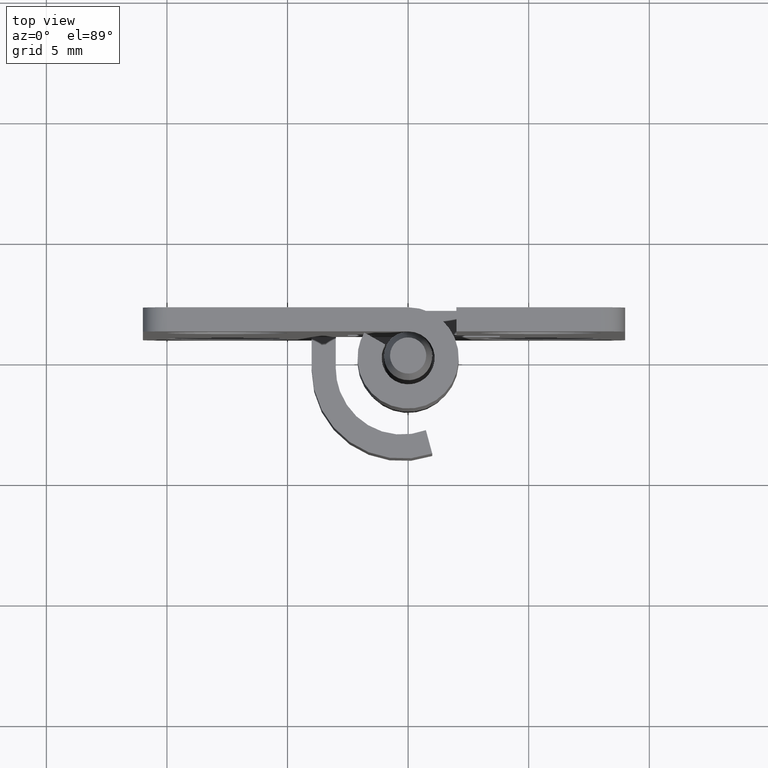
[diagram: clean part render]
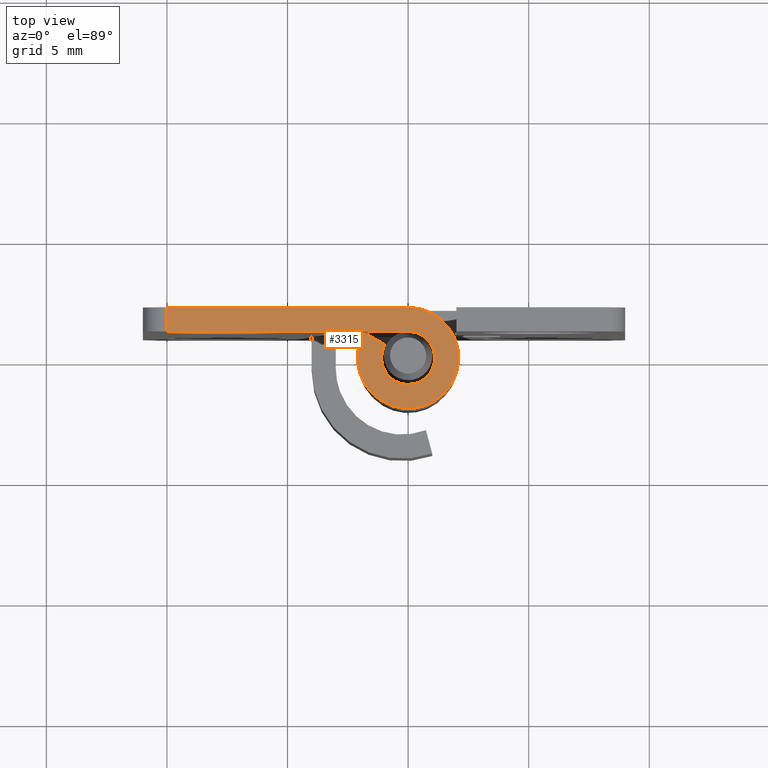
[diagram: same view with one face highlighted and labeled with its STEP entity id]
A machine part, top view. The second image highlights one B-rep face of the part: STEP entity #3315.
In plain terms, the highlighted face is a freeform B-spline surface patch.
Its self-contained STEP definition (entity closure, byte-faithful):
#2373=CARTESIAN_POINT('',(-1.818660313040655,0.950008000000038,22.0));
#2374=VERTEX_POINT('',#2373);
#2421=CARTESIAN_POINT('',(-0.000006965093348,2.000008000000035,22.0));
#2422=VERTEX_POINT('',#2421);
#2428=CARTESIAN_POINT('',(-0.000006965093348,2.000008000000035,22.0));
#2429=CARTESIAN_POINT('',(0.171803505224364,2.000056506684977,22.000000000000082));
#2430=CARTESIAN_POINT('',(0.443803904288967,1.966427482992136,21.999999999999851));
#2431=CARTESIAN_POINT('',(0.777945248739456,1.856787059198147,22.000000000000139));
#2432=CARTESIAN_POINT('',(1.056250049016021,1.724121769088248,21.999999999999979));
#2433=CARTESIAN_POINT('',(1.360279219486728,1.519200306895643,22.000000000000089));
#2434=CARTESIAN_POINT('',(1.657116468770604,1.214989718175777,21.999999999999972));
#2435=CARTESIAN_POINT('',(1.876080847443115,0.868386688320490,22.000000000000039));
#2436=CARTESIAN_POINT('',(2.008089232676498,0.542136965499962,22.0));
#2437=CARTESIAN_POINT('',(2.075484400646828,0.255709827461828,22.0));
#2438=CARTESIAN_POINT('',(2.108769775225869,-0.065212474532560,22.000000000000021));
#2439=CARTESIAN_POINT('',(2.091688006117292,-0.374166164875588,22.0));
#2440=CARTESIAN_POINT('',(2.009161211916098,-0.745231365386407,21.999999999999989));
#2441=CARTESIAN_POINT('',(1.892157207409869,-1.031862683933976,22.000000000000060));
#2442=CARTESIAN_POINT('',(1.720888507747875,-1.313624580355603,21.999999999999869));
#2443=CARTESIAN_POINT('',(1.514800377240157,-1.571705583249755,22.000000000000341));
#2444=CARTESIAN_POINT('',(1.231560831674659,-1.816536298127245,21.999999999999570));
#2445=CARTESIAN_POINT('',(0.914315332627469,-1.999671457372887,21.999999999999591));
#2446=CARTESIAN_POINT('',(0.626620624372855,-2.111322240939172,22.000000000000028));
#2447=CARTESIAN_POINT('',(0.291483390300439,-2.190574436525137,22.000000000000011));
#2448=CARTESIAN_POINT('',(-0.039148691548723,-2.209868743365001,21.999999999999989));
#2449=CARTESIAN_POINT('',(-0.381313392208804,-2.171898434970793,22.000000000000060));
#2450=CARTESIAN_POINT('',(-0.729287654714941,-2.083644553395758,22.000000000000028));
#2451=CARTESIAN_POINT('',(-1.094012583526060,-1.910679757107140,21.999999999999961));
#2452=CARTESIAN_POINT('',(-1.413884877477803,-1.666231803039715,22.000000000000870));
#2453=CARTESIAN_POINT('',(-1.673157379521329,-1.387713606169517,21.999999999999140));
#2454=CARTESIAN_POINT('',(-1.855849292510685,-1.103096969650911,22.000000000000341));
#2455=CARTESIAN_POINT('',(-1.994961052806549,-0.780365450521696,21.999999999999989));
#2456=CARTESIAN_POINT('',(-2.086910615922137,-0.433041165002135,21.999999999999719));
#2457=CARTESIAN_POINT('',(-2.111008683292910,-0.059421629612828,22.000000000001101));
#2458=CARTESIAN_POINT('',(-2.067525976318497,0.318468848048376,21.999999999996820));
#2459=CARTESIAN_POINT('',(-1.974747989416232,0.643358325815232,22.000000000008630));
#2460=CARTESIAN_POINT('',(-1.872352159829929,0.857017962635177,21.999999999996760));
#2461=CARTESIAN_POINT('',(-1.818660313040655,0.950008000000038,22.0));
#2462=B_SPLINE_CURVE_WITH_KNOTS('',3,(#2428,#2429,#2430,#2431,#2432,#2433,#2434,#2435,#2436,#2437,#2438,#2439,#2440,#2441,#2442,#2443,#2444,#2445,#2446,#2447,#2448,#2449,#2450,#2451,#2452,#2453,#2454,#2455,#2456,#2457,#2458,#2459,#2460,#2461),.UNSPECIFIED.,.F.,.U.,(4,1,1,1,1,1,1,1,1,1,1,1,1,1,1,1,1,1,1,1,1,1,1,1,1,1,1,1,1,1,1,4),(0.000000074224342,0.515418598163373,0.816075002584137,1.052312182821520,1.438880832708291,1.911355094797486,2.319391387292535,2.663013344663320,2.963663255162823,3.199887765877637,3.629408981586954,3.887121815356156,4.338118142607809,4.552880215748390,4.875013997589112,5.326017233904954,5.669605218322189,5.970269177950158,6.249457828371789,6.700456718414553,6.958167561492515,7.280306153372877,7.774258930355885,8.160823926279617,8.482946048863086,8.912459206243241,9.170171752553641,9.535265977289472,9.986262868978550,10.286922431243029,10.673487494879691,10.995622199914740),.UNSPECIFIED.);
#2463=EDGE_CURVE('',#2422,#2374,#2462,.T.);
#2481=CARTESIAN_POINT('',(-0.952634909256224,0.450008000000027,22.0));
#2482=VERTEX_POINT('',#2481);
#2483=CARTESIAN_POINT('',(-1.818660313040655,0.950008000000038,22.0));
#2484=CARTESIAN_POINT('',(-0.952634909256224,0.450008000000027,22.0));
#2485=QUASI_UNIFORM_CURVE('',1,(#2483,#2484),.UNSPECIFIED.,.F.,.U.);
#2486=EDGE_CURVE('',#2374,#2482,#2485,.T.);
#2532=CARTESIAN_POINT('',(-9.999999999999890,2.000008000000035,22.0));
#2533=VERTEX_POINT('',#2532);
#2547=CARTESIAN_POINT('',(-9.999999999999890,2.000008000000035,22.0));
#2548=CARTESIAN_POINT('',(-0.000006965093348,2.000008000000035,22.0));
#2549=QUASI_UNIFORM_CURVE('',1,(#2547,#2548),.UNSPECIFIED.,.F.,.U.);
#2550=EDGE_CURVE('',#2533,#2422,#2549,.T.);
#2659=CARTESIAN_POINT('',(-9.999999999999890,1.000008000000036,22.0));
#2660=VERTEX_POINT('',#2659);
#2676=CARTESIAN_POINT('',(-9.999999999999890,2.000008000000035,22.0));
#2677=CARTESIAN_POINT('',(-9.999999999999890,1.000008000000036,22.0));
#2678=QUASI_UNIFORM_CURVE('',1,(#2676,#2677),.UNSPECIFIED.,.F.,.U.);
#2679=EDGE_CURVE('',#2533,#2660,#2678,.T.);
#3265=CARTESIAN_POINT('',(-10.604394628640170,-2.409781991857306,22.0));
#3266=CARTESIAN_POINT('',(2.704387988070699,-2.409781991857306,22.0));
#3267=CARTESIAN_POINT('',(-10.604394628640170,2.209798104512293,22.0));
#3268=CARTESIAN_POINT('',(2.704387988070699,2.209798104512293,22.0));
#3269=B_SPLINE_SURFACE_WITH_KNOTS('',1,1,((#3265,#3267),(#3266,#3268)),.UNSPECIFIED.,.F.,.F.,.U.,(2,2),(2,2),(0.0,13.308782616710870),(0.0,4.619580096369599),.UNSPECIFIED.);
#3270=ORIENTED_EDGE('',*,*,#2550,.F.);
#3271=ORIENTED_EDGE('',*,*,#2679,.T.);
#3272=CARTESIAN_POINT('',(-0.000006965093348,1.000008000000014,22.0));
#3273=VERTEX_POINT('',#3272);
#3274=CARTESIAN_POINT('',(-0.000006965093348,1.000008000000014,22.0));
#3275=CARTESIAN_POINT('',(-9.999999999999890,1.000008000000036,22.0));
#3276=QUASI_UNIFORM_CURVE('',1,(#3274,#3275),.UNSPECIFIED.,.F.,.U.);
#3277=EDGE_CURVE('',#3273,#2660,#3276,.T.);
#3278=ORIENTED_EDGE('',*,*,#3277,.F.);
#3279=CARTESIAN_POINT('',(-0.000006965093348,1.000008000000014,22.0));
#3280=CARTESIAN_POINT('',(0.097487462958931,1.000038939918927,21.999999999999989));
#3281=CARTESIAN_POINT('',(0.277457032625238,0.975921455267537,22.000000000000050));
#3282=CARTESIAN_POINT('',(0.505387402215622,0.885310548551189,21.999999999999869));
#3283=CARTESIAN_POINT('',(0.666181028402111,0.780451173157459,22.000000000000231));
#3284=CARTESIAN_POINT('',(0.789785707797468,0.670696619853290,21.999999999999780));
#3285=CARTESIAN_POINT('',(0.921681192542992,0.516261454716033,22.000000000000369));
#3286=CARTESIAN_POINT('',(1.028943677986796,0.316063421475851,21.999999999999570));
#3287=CARTESIAN_POINT('',(1.092270923011063,0.079627373745789,22.000000000000380));
#3288=CARTESIAN_POINT('',(1.105746082823405,-0.119687557681899,21.999999999999439));
#3289=CARTESIAN_POINT('',(1.082321130798231,-0.328990187782233,22.000000000000650));
#3290=CARTESIAN_POINT('',(1.026300388990336,-0.512992722351674,21.999999999999488));
#3291=CARTESIAN_POINT('',(0.936049279413071,-0.686489231260679,22.000000000000330));
#3292=CARTESIAN_POINT('',(0.819508093321905,-0.843635200905356,21.999999999999542));
#3293=CARTESIAN_POINT('',(0.655723041698768,-0.994245785324222,22.000000000000639));
#3294=CARTESIAN_POINT('',(0.433503359066632,-1.122550957862266,21.999999999999599));
#3295=CARTESIAN_POINT('',(0.204835945808634,-1.189120710789442,22.000000000000249));
#3296=CARTESIAN_POINT('',(-0.005293026880292,-1.204593607382927,21.999999999999901));
#3297=CARTESIAN_POINT('',(-0.181415657825198,-1.189611731304722,21.999999999999780));
#3298=CARTESIAN_POINT('',(-0.367643983136355,-1.143376295266838,22.000000000001599));
#3299=CARTESIAN_POINT('',(-0.546014824630112,-1.062113781115234,21.999999999995829));
#3300=CARTESIAN_POINT('',(-0.727759820031064,-0.934670749464293,22.000000000001680));
#3301=CARTESIAN_POINT('',(-0.894221661425313,-0.759510119900278,21.999999999999460));
#3302=CARTESIAN_POINT('',(-1.022556085376911,-0.532408360629506,22.000000000000121));
#3303=CARTESIAN_POINT('',(-1.082815345774446,-0.322129944776382,21.999999999999911));
#3304=CARTESIAN_POINT('',(-1.105590322931005,-0.116760775833562,22.000000000000259));
#3305=CARTESIAN_POINT('',(-1.089362435101593,0.139327299402759,21.999999999999218));
#3306=CARTESIAN_POINT('',(-1.016467273455737,0.339635809220570,22.000000000000540));
#3307=CARTESIAN_POINT('',(-0.952634909256224,0.450008000000027,22.0));
#3308=B_SPLINE_CURVE_WITH_KNOTS('',3,(#3279,#3280,#3281,#3282,#3283,#3284,#3285,#3286,#3287,#3288,#3289,#3290,#3291,#3292,#3293,#3294,#3295,#3296,#3297,#3298,#3299,#3300,#3301,#3302,#3303,#3304,#3305,#3306,#3307),.UNSPECIFIED.,.F.,.U.,(4,1,1,1,1,1,1,1,1,1,1,1,1,1,1,1,1,1,1,1,1,1,1,1,1,1,4),(0.000000118493793,0.292474443614045,0.539962953068421,0.731201427654310,0.866195550309860,1.034937397738764,1.338670214815728,1.541137947250786,1.766123309055782,1.934864939811557,2.171104316453900,2.339844741821311,2.519838058153576,2.756076573784716,3.003535734523639,3.284771764288849,3.464765692759745,3.633505612987447,3.813497331982662,4.038486818061728,4.218476004336814,4.477191747855459,4.758427672780250,4.994662346045532,5.129655617259389,5.377144252794862,5.759611628539828),.UNSPECIFIED.);
#3309=EDGE_CURVE('',#3273,#2482,#3308,.T.);
#3310=ORIENTED_EDGE('',*,*,#3309,.T.);
#3311=ORIENTED_EDGE('',*,*,#2486,.F.);
#3312=ORIENTED_EDGE('',*,*,#2463,.F.);
#3313=EDGE_LOOP('',(#3270,#3271,#3278,#3310,#3311,#3312));
#3314=FACE_OUTER_BOUND('',#3313,.T.);
#3315=ADVANCED_FACE('',(#3314),#3269,.T.);